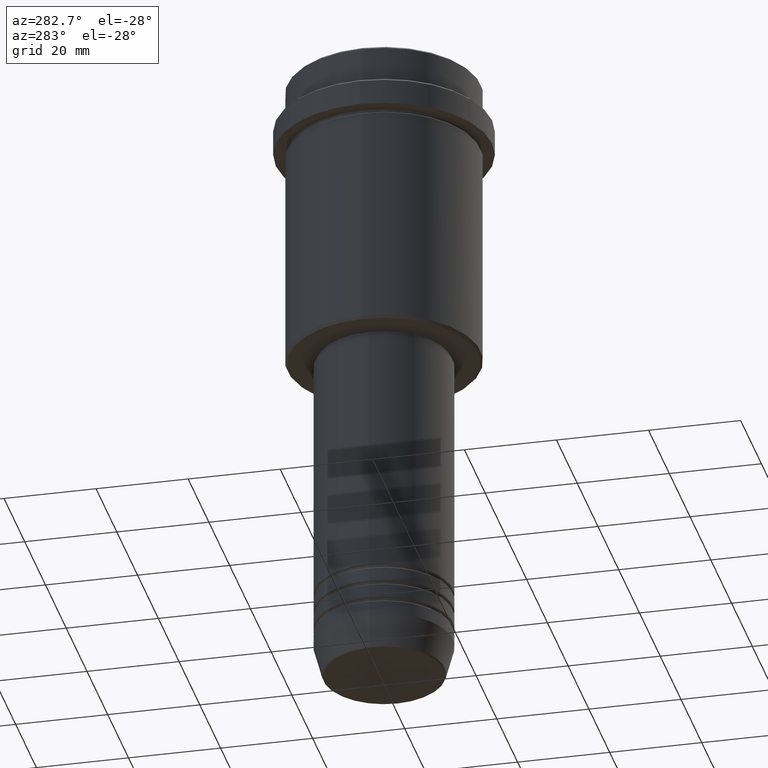
[diagram: clean part render]
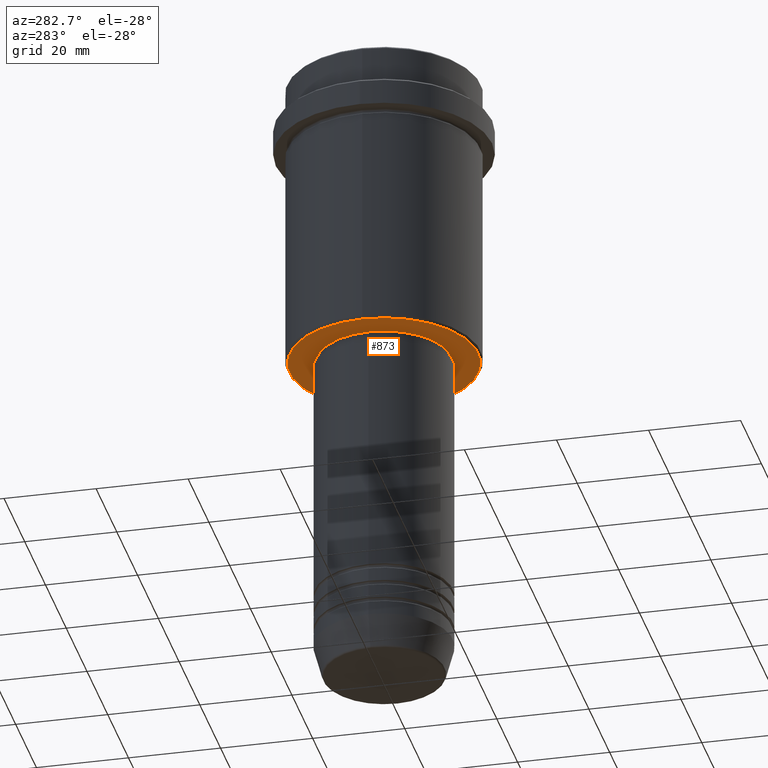
[diagram: same view with one face highlighted and labeled with its STEP entity id]
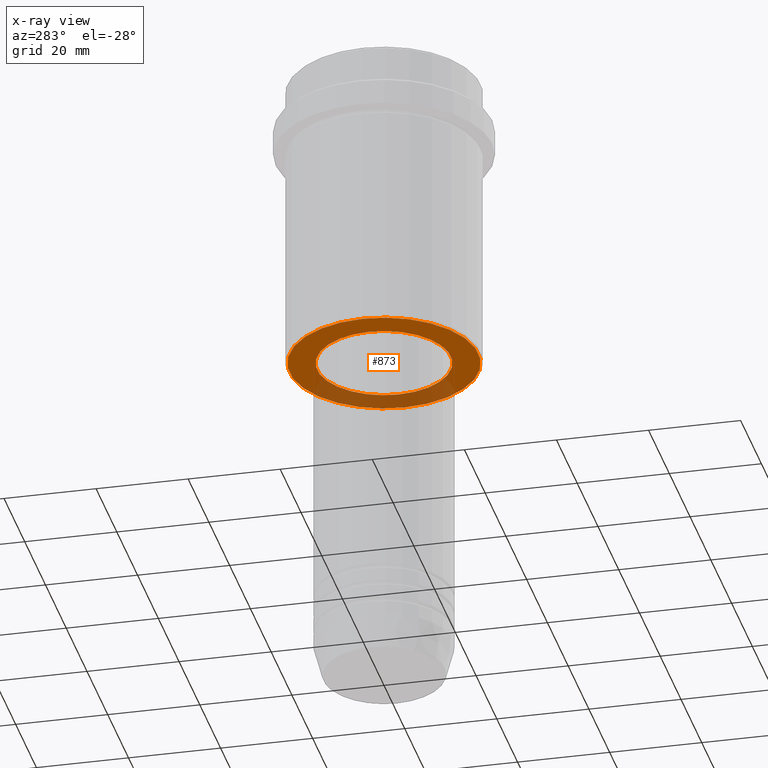
[diagram: x-ray of the same camera — body ghosted, the highlighted face saturated]
A machine part, auxiliary view. The second image highlights one B-rep face of the part: STEP entity #873.
The next image is the same camera in x-ray: the body ghosted, the highlighted face saturated — about 30% of this face is hidden behind the body in this view.
In plain terms, the highlighted planar face has unit normal (0, 0, -1).
Its self-contained STEP definition (entity closure, byte-faithful):
#12 = CARTESIAN_POINT ( 'NONE',  ( 0.000000000000000000, 0.000000000000000000, -65.00000000000001421 ) ) ;
#43 = EDGE_LOOP ( 'NONE', ( #151, #542 ) ) ;
#64 = CARTESIAN_POINT ( 'NONE',  ( -20.49999999999998934, 2.541142108230757480E-15, -65.00000000000001421 ) ) ;
#81 = CIRCLE ( 'NONE', #826, 14.49999999999999467 ) ;
#148 = DIRECTION ( 'NONE',  ( -1.000000000000000000, 0.000000000000000000, 0.000000000000000000 ) ) ;
#151 = ORIENTED_EDGE ( 'NONE', *, *, #321, .T. ) ;
#176 = VERTEX_POINT ( 'NONE', #966 ) ;
#209 = PLANE ( 'NONE',  #415 ) ;
#215 = CARTESIAN_POINT ( 'NONE',  ( 20.49999999999998934, 0.000000000000000000, -65.00000000000001421 ) ) ;
#218 = CIRCLE ( 'NONE', #545, 20.49999999999998934 ) ;
#221 = CIRCLE ( 'NONE', #459, 14.49999999999999467 ) ;
#315 = ORIENTED_EDGE ( 'NONE', *, *, #1023, .T. ) ;
#321 = EDGE_CURVE ( 'NONE', #514, #1314, #218, .T. ) ;
#383 = DIRECTION ( 'NONE',  ( 0.000000000000000000, 0.000000000000000000, -1.000000000000000000 ) ) ;
#415 = AXIS2_PLACEMENT_3D ( 'NONE', #1062, #383, #745 ) ;
#448 = DIRECTION ( 'NONE',  ( -0.000000000000000000, -0.000000000000000000, 1.000000000000000000 ) ) ;
#459 = AXIS2_PLACEMENT_3D ( 'NONE', #12, #448, #640 ) ;
#514 = VERTEX_POINT ( 'NONE', #215 ) ;
#542 = ORIENTED_EDGE ( 'NONE', *, *, #716, .T. ) ;
#545 = AXIS2_PLACEMENT_3D ( 'NONE', #554, #1001, #1188 ) ;
#554 = CARTESIAN_POINT ( 'NONE',  ( 0.000000000000000000, 0.000000000000000000, -65.00000000000001421 ) ) ;
#583 = CARTESIAN_POINT ( 'NONE',  ( 0.000000000000000000, 0.000000000000000000, -65.00000000000001421 ) ) ;
#640 = DIRECTION ( 'NONE',  ( 1.000000000000000000, 0.000000000000000000, 0.000000000000000000 ) ) ;
#714 = FACE_BOUND ( 'NONE', #1247, .T. ) ;
#716 = EDGE_CURVE ( 'NONE', #1314, #514, #1131, .T. ) ;
#745 = DIRECTION ( 'NONE',  ( -1.000000000000000000, 0.000000000000000000, -0.000000000000000000 ) ) ;
#797 = DIRECTION ( 'NONE',  ( 1.000000000000000000, 0.000000000000000000, 0.000000000000000000 ) ) ;
#804 = CARTESIAN_POINT ( 'NONE',  ( 0.000000000000000000, 0.000000000000000000, -65.00000000000001421 ) ) ;
#826 = AXIS2_PLACEMENT_3D ( 'NONE', #583, #1133, #797 ) ;
#851 = AXIS2_PLACEMENT_3D ( 'NONE', #804, #1010, #148 ) ;
#873 = ADVANCED_FACE ( 'NONE', ( #1291, #714 ), #209, .T. ) ;
#966 = CARTESIAN_POINT ( 'NONE',  ( 14.49999999999999467, 0.000000000000000000, -65.00000000000001421 ) ) ;
#1001 = DIRECTION ( 'NONE',  ( 0.000000000000000000, 0.000000000000000000, -1.000000000000000000 ) ) ;
#1010 = DIRECTION ( 'NONE',  ( 0.000000000000000000, 0.000000000000000000, -1.000000000000000000 ) ) ;
#1023 = EDGE_CURVE ( 'NONE', #176, #1349, #221, .T. ) ;
#1062 = CARTESIAN_POINT ( 'NONE',  ( 0.000000000000000000, 21.00000000000000000, -65.00000000000001421 ) ) ;
#1105 = EDGE_CURVE ( 'NONE', #1349, #176, #81, .T. ) ;
#1126 = ORIENTED_EDGE ( 'NONE', *, *, #1105, .T. ) ;
#1131 = CIRCLE ( 'NONE', #851, 20.49999999999998934 ) ;
#1133 = DIRECTION ( 'NONE',  ( -0.000000000000000000, -0.000000000000000000, 1.000000000000000000 ) ) ;
#1161 = CARTESIAN_POINT ( 'NONE',  ( -14.49999999999999467, 1.775737858763661620E-15, -65.00000000000001421 ) ) ;
#1188 = DIRECTION ( 'NONE',  ( -1.000000000000000000, 0.000000000000000000, 0.000000000000000000 ) ) ;
#1247 = EDGE_LOOP ( 'NONE', ( #315, #1126 ) ) ;
#1291 = FACE_OUTER_BOUND ( 'NONE', #43, .T. ) ;
#1314 = VERTEX_POINT ( 'NONE', #64 ) ;
#1349 = VERTEX_POINT ( 'NONE', #1161 ) ;